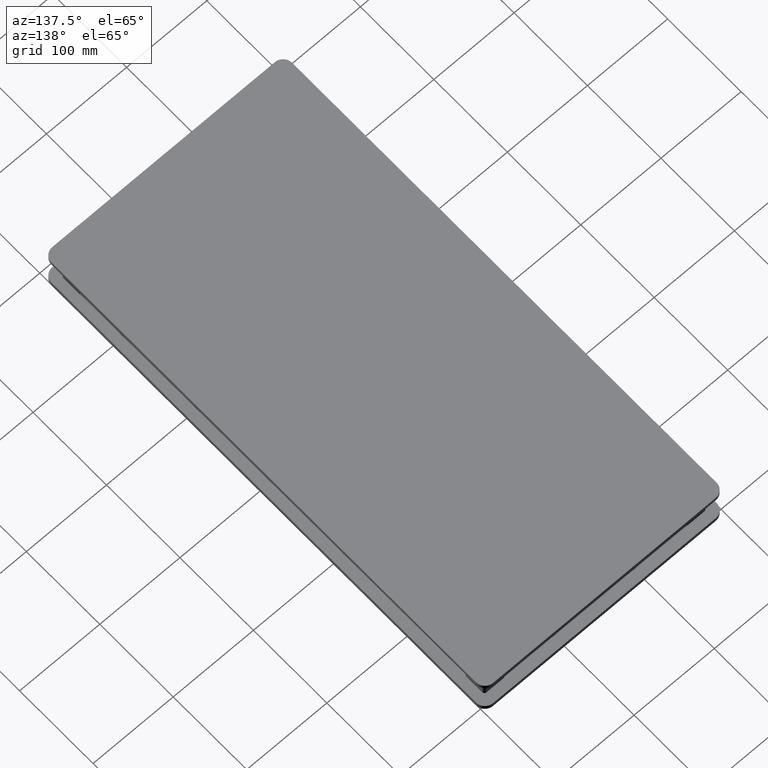
[diagram: clean part render]
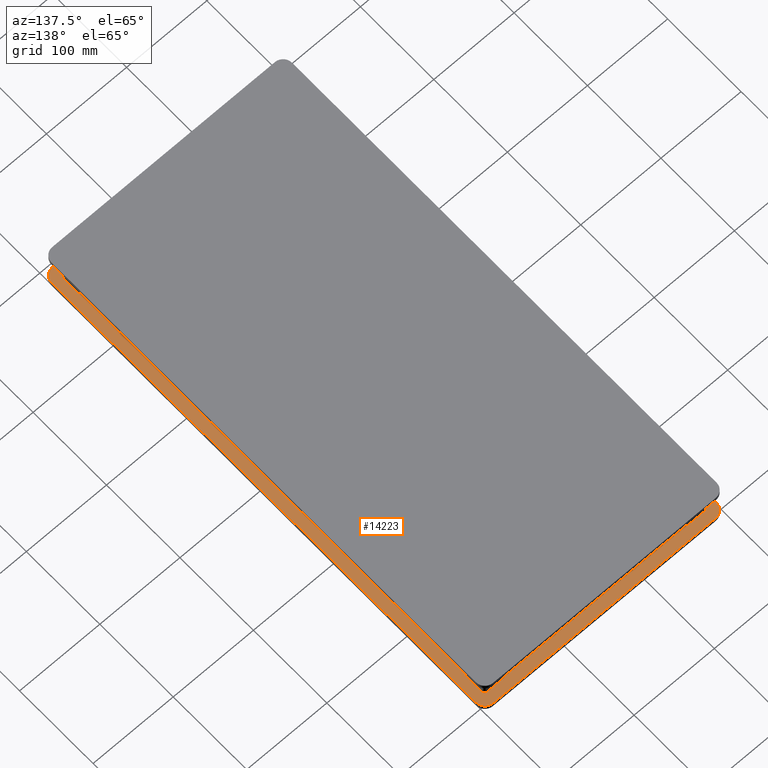
[diagram: same view with one face highlighted and labeled with its STEP entity id]
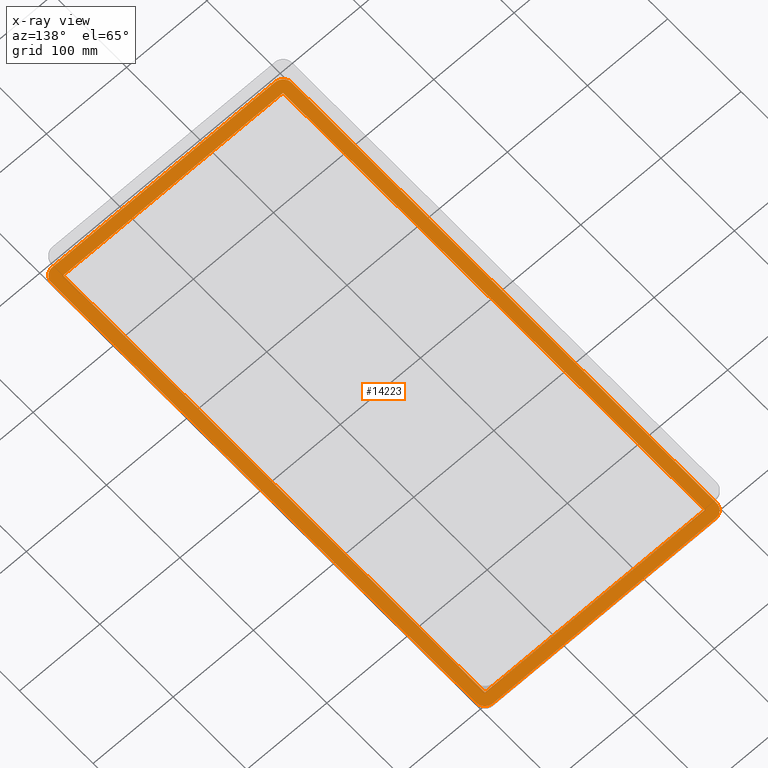
[diagram: x-ray of the same camera — body ghosted, the highlighted face saturated]
A machine part, auxiliary view. The second image highlights one B-rep face of the part: STEP entity #14223.
The next image is the same camera in x-ray: the body ghosted, the highlighted face saturated — about 0% of this face is hidden behind the body in this view.
In plain terms, the highlighted planar face has unit normal (-0, 0, -1).
Its self-contained STEP definition (entity closure, byte-faithful):
#148 = DIRECTION ( 'NONE',  ( 1.000000000000000000, 0.000000000000000000, 0.000000000000000000 ) ) ;
#184 = EDGE_CURVE ( 'NONE', #19483, #5883, #9244, .T. ) ;
#361 = DIRECTION ( 'NONE',  ( -1.000000000000000000, -0.000000000000000000, 1.224646799147353207E-16 ) ) ;
#1305 = DIRECTION ( 'NONE',  ( -0.000000000000000000, 1.000000000000000000, -0.000000000000000000 ) ) ;
#1522 = CARTESIAN_POINT ( 'NONE',  ( 403.6333857621494303, 297.9691974502526364, -394.0013852687680469 ) ) ;
#2005 = EDGE_CURVE ( 'NONE', #5883, #7935, #14915, .T. ) ;
#2469 = DIRECTION ( 'NONE',  ( -1.000000000000000000, 0.000000000000000000, 0.000000000000000000 ) ) ;
#2690 = LINE ( 'NONE', #13189, #14858 ) ;
#2871 = EDGE_CURVE ( 'NONE', #18497, #3258, #16977, .T. ) ;
#3043 = ORIENTED_EDGE ( 'NONE', *, *, #19567, .F. ) ;
#3088 = CARTESIAN_POINT ( 'NONE',  ( 114.6333857621496577, -291.0308025497472499, -394.0013852687679332 ) ) ;
#3258 = VERTEX_POINT ( 'NONE', #3387 ) ;
#3387 = CARTESIAN_POINT ( 'NONE',  ( 390.6333857621494303, -278.0308025497470794, -394.0013852687680469 ) ) ;
#3423 = CARTESIAN_POINT ( 'NONE',  ( -383.3666142378506834, 295.9691974502528637, -394.0013852687678764 ) ) ;
#3501 = CARTESIAN_POINT ( 'NONE',  ( 114.6333857621494303, 297.9691974502528637, -394.0013852687679332 ) ) ;
#3599 = CIRCLE ( 'NONE', #15631, 10.99999999999995381 ) ;
#3736 = ORIENTED_EDGE ( 'NONE', *, *, #6574, .F. ) ;
#3898 = DIRECTION ( 'NONE',  ( -1.224646799147353207E-16, 0.000000000000000000, -1.000000000000000000 ) ) ;
#4051 = DIRECTION ( 'NONE',  ( -1.224646799147353207E-16, 0.000000000000000000, -1.000000000000000000 ) ) ;
#4529 = VECTOR ( 'NONE', #16123, 1000.000000000000000 ) ;
#4797 = LINE ( 'NONE', #10847, #16027 ) ;
#4808 = EDGE_CURVE ( 'NONE', #14307, #14994, #2690, .T. ) ;
#4818 = FACE_BOUND ( 'NONE', #5745, .T. ) ;
#5745 = EDGE_LOOP ( 'NONE', ( #15684, #3736, #18302, #11150 ) ) ;
#5883 = VERTEX_POINT ( 'NONE', #6281 ) ;
#5950 = CARTESIAN_POINT ( 'NONE',  ( 403.6333857621493166, -280.0308025497472499, -394.0013852687680469 ) ) ;
#5987 = CARTESIAN_POINT ( 'NONE',  ( 114.6333857621496577, -291.0308025497471363, -394.0013852687679332 ) ) ;
#6181 = DIRECTION ( 'NONE',  ( 1.000000000000000000, 0.000000000000000000, -1.224646799147353207E-16 ) ) ;
#6250 = ORIENTED_EDGE ( 'NONE', *, *, #4808, .F. ) ;
#6281 = CARTESIAN_POINT ( 'NONE',  ( 392.6333857621493735, 308.9691974502527501, -394.0013852687680469 ) ) ;
#6506 = CARTESIAN_POINT ( 'NONE',  ( 992.6333857621494872, 297.9691974502527501, -394.0013852687680469 ) ) ;
#6574 = EDGE_CURVE ( 'NONE', #3258, #11744, #8601, .T. ) ;
#6886 = EDGE_CURVE ( 'NONE', #8313, #14307, #12692, .T. ) ;
#7756 = ORIENTED_EDGE ( 'NONE', *, *, #13316, .F. ) ;
#7891 = DIRECTION ( 'NONE',  ( -1.224646799147353207E-16, 0.000000000000000000, -1.000000000000000000 ) ) ;
#7935 = VERTEX_POINT ( 'NONE', #16366 ) ;
#7963 = DIRECTION ( 'NONE',  ( -1.224646799147353207E-16, 0.000000000000000000, -1.000000000000000000 ) ) ;
#8171 = ORIENTED_EDGE ( 'NONE', *, *, #14537, .F. ) ;
#8313 = VERTEX_POINT ( 'NONE', #5987 ) ;
#8449 = DIRECTION ( 'NONE',  ( -1.000000000000000000, 0.000000000000000000, 1.224646799147353207E-16 ) ) ;
#8601 = LINE ( 'NONE', #10087, #4529 ) ;
#8714 = EDGE_CURVE ( 'NONE', #7935, #10688, #16580, .T. ) ;
#8913 = AXIS2_PLACEMENT_3D ( 'NONE', #18461, #7963, #12230 ) ;
#9244 = LINE ( 'NONE', #13805, #11380 ) ;
#10087 = CARTESIAN_POINT ( 'NONE',  ( 390.6333857621494303, 595.9691974502527501, -394.0013852687680469 ) ) ;
#10186 = CIRCLE ( 'NONE', #8913, 11.00000000000001066 ) ;
#10456 = CARTESIAN_POINT ( 'NONE',  ( 392.6333857621492598, -291.0308025497473068, -394.0013852687680469 ) ) ;
#10688 = VERTEX_POINT ( 'NONE', #5950 ) ;
#10847 = CARTESIAN_POINT ( 'NONE',  ( 116.6333857621494303, 595.9691974502527501, -394.0013852687678764 ) ) ;
#11089 = EDGE_LOOP ( 'NONE', ( #8171, #3043, #13593, #19086, #15097, #7756, #6250, #12224 ) ) ;
#11150 = ORIENTED_EDGE ( 'NONE', *, *, #15458, .F. ) ;
#11380 = VECTOR ( 'NONE', #12310, 1000.000000000000000 ) ;
#11611 = EDGE_CURVE ( 'NONE', #11744, #16759, #16796, .T. ) ;
#11744 = VERTEX_POINT ( 'NONE', #17483 ) ;
#12224 = ORIENTED_EDGE ( 'NONE', *, *, #6886, .F. ) ;
#12230 = DIRECTION ( 'NONE',  ( 1.000000000000000000, 0.000000000000000000, 0.000000000000000000 ) ) ;
#12310 = DIRECTION ( 'NONE',  ( 1.000000000000000000, -1.264490916429563720E-16, -1.264490916429563720E-16 ) ) ;
#12692 = CIRCLE ( 'NONE', #19011, 10.99999999999995381 ) ;
#12725 = CARTESIAN_POINT ( 'NONE',  ( 116.6333857621494303, 295.9691974502528637, -394.0013852687679901 ) ) ;
#12801 = AXIS2_PLACEMENT_3D ( 'NONE', #6506, #3898, #8449 ) ;
#13189 = CARTESIAN_POINT ( 'NONE',  ( 103.6333857621495298, 297.9691974502527501, -394.0013852687679332 ) ) ;
#13316 = EDGE_CURVE ( 'NONE', #14994, #19483, #3599, .T. ) ;
#13593 = ORIENTED_EDGE ( 'NONE', *, *, #8714, .F. ) ;
#13596 = DIRECTION ( 'NONE',  ( -1.000000000000000000, 9.483681873221729749E-17, 1.264490916429563967E-16 ) ) ;
#13805 = CARTESIAN_POINT ( 'NONE',  ( 114.6333857621496577, 308.9691974502528637, -394.0013852687679332 ) ) ;
#13938 = DIRECTION ( 'NONE',  ( 1.000000000000000000, 0.000000000000000000, 0.000000000000000000 ) ) ;
#13994 = VECTOR ( 'NONE', #6181, 1000.000000000000000 ) ;
#14020 = DIRECTION ( 'NONE',  ( -1.224646799147353207E-16, 0.000000000000000000, -1.000000000000000000 ) ) ;
#14223 = ADVANCED_FACE ( 'NONE', ( #17465, #4818 ), #18384, .F. ) ;
#14293 = CARTESIAN_POINT ( 'NONE',  ( 116.6333857621494303, -278.0308025497470794, -394.0013852687678764 ) ) ;
#14307 = VERTEX_POINT ( 'NONE', #16287 ) ;
#14537 = EDGE_CURVE ( 'NONE', #15297, #8313, #16958, .T. ) ;
#14858 = VECTOR ( 'NONE', #1305, 1000.000000000000000 ) ;
#14915 = CIRCLE ( 'NONE', #17762, 11.00000000000001066 ) ;
#14994 = VERTEX_POINT ( 'NONE', #17099 ) ;
#15097 = ORIENTED_EDGE ( 'NONE', *, *, #184, .F. ) ;
#15179 = DIRECTION ( 'NONE',  ( -1.920801080666361383E-16, -1.000000000000000000, 0.000000000000000000 ) ) ;
#15297 = VERTEX_POINT ( 'NONE', #10456 ) ;
#15422 = CARTESIAN_POINT ( 'NONE',  ( 114.6333857621494303, -280.0308025497471931, -394.0013852687679332 ) ) ;
#15458 = EDGE_CURVE ( 'NONE', #16759, #18497, #4797, .T. ) ;
#15497 = DIRECTION ( 'NONE',  ( -0.000000000000000000, -1.000000000000000000, -0.000000000000000000 ) ) ;
#15631 = AXIS2_PLACEMENT_3D ( 'NONE', #3501, #14020, #148 ) ;
#15679 = VECTOR ( 'NONE', #13596, 1000.000000000000000 ) ;
#15684 = ORIENTED_EDGE ( 'NONE', *, *, #11611, .F. ) ;
#16027 = VECTOR ( 'NONE', #15497, 1000.000000000000000 ) ;
#16123 = DIRECTION ( 'NONE',  ( 0.000000000000000000, 1.000000000000000000, 0.000000000000000000 ) ) ;
#16251 = CARTESIAN_POINT ( 'NONE',  ( 392.6333857621493735, 297.9691974502527501, -394.0013852687680469 ) ) ;
#16287 = CARTESIAN_POINT ( 'NONE',  ( 103.6333857621495298, -280.0308025497470794, -394.0013852687679332 ) ) ;
#16366 = CARTESIAN_POINT ( 'NONE',  ( 403.6333857621494303, 297.9691974502526364, -394.0013852687680469 ) ) ;
#16496 = CARTESIAN_POINT ( 'NONE',  ( 114.6333857621496577, 308.9691974502528637, -394.0013852687679332 ) ) ;
#16565 = VECTOR ( 'NONE', #361, 1000.000000000000000 ) ;
#16580 = LINE ( 'NONE', #1522, #18453 ) ;
#16759 = VERTEX_POINT ( 'NONE', #12725 ) ;
#16796 = LINE ( 'NONE', #3423, #16565 ) ;
#16958 = LINE ( 'NONE', #3088, #15679 ) ;
#16977 = LINE ( 'NONE', #18355, #13994 ) ;
#17099 = CARTESIAN_POINT ( 'NONE',  ( 103.6333857621495298, 297.9691974502527501, -394.0013852687679332 ) ) ;
#17465 = FACE_OUTER_BOUND ( 'NONE', #11089, .T. ) ;
#17483 = CARTESIAN_POINT ( 'NONE',  ( 390.6333857621493166, 295.9691974502528637, -394.0013852687679332 ) ) ;
#17762 = AXIS2_PLACEMENT_3D ( 'NONE', #16251, #4051, #2469 ) ;
#18302 = ORIENTED_EDGE ( 'NONE', *, *, #2871, .F. ) ;
#18355 = CARTESIAN_POINT ( 'NONE',  ( -383.3666142378506834, -278.0308025497471363, -394.0013852687678764 ) ) ;
#18384 = PLANE ( 'NONE',  #12801 ) ;
#18453 = VECTOR ( 'NONE', #15179, 1000.000000000000000 ) ;
#18461 = CARTESIAN_POINT ( 'NONE',  ( 392.6333857621493166, -280.0308025497472499, -394.0013852687680469 ) ) ;
#18497 = VERTEX_POINT ( 'NONE', #14293 ) ;
#19011 = AXIS2_PLACEMENT_3D ( 'NONE', #15422, #7891, #13938 ) ;
#19086 = ORIENTED_EDGE ( 'NONE', *, *, #2005, .F. ) ;
#19483 = VERTEX_POINT ( 'NONE', #16496 ) ;
#19567 = EDGE_CURVE ( 'NONE', #10688, #15297, #10186, .T. ) ;